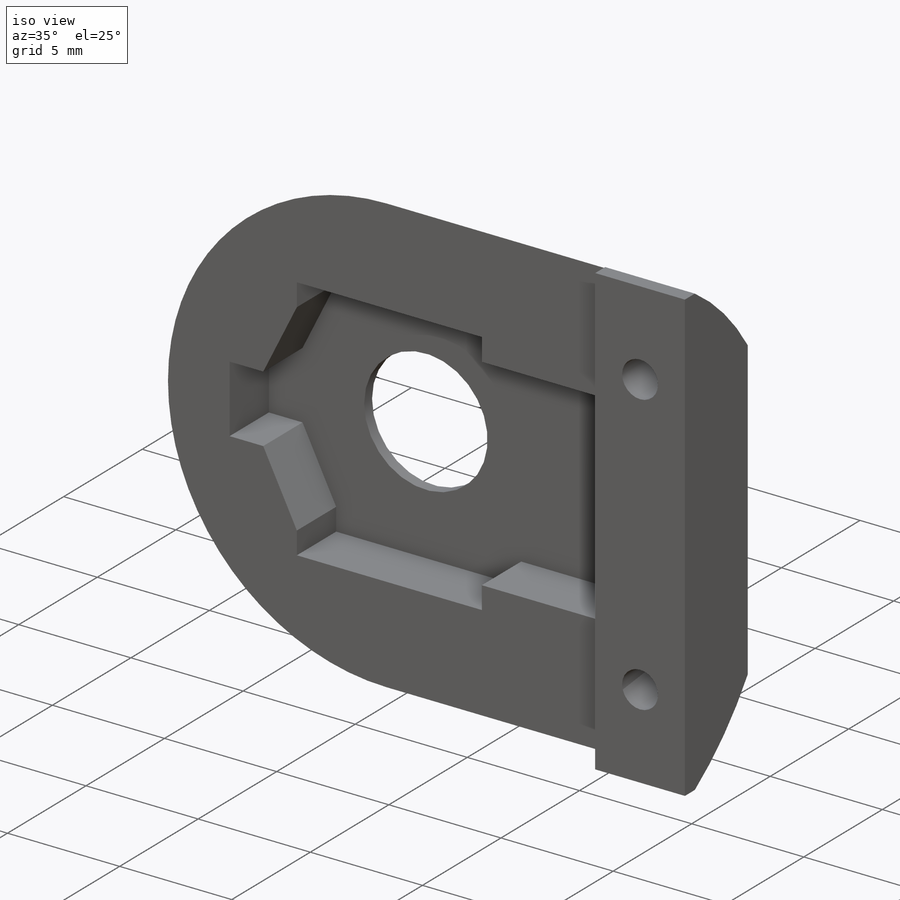
[diagram: iso view]
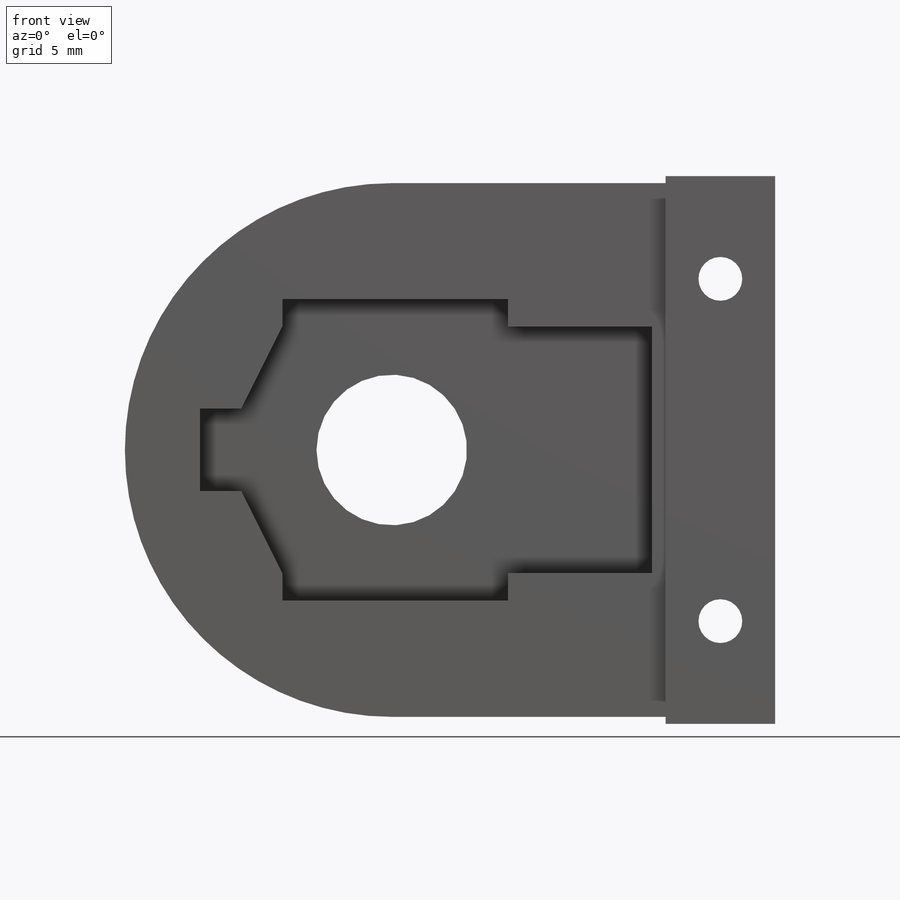
[diagram: front view]
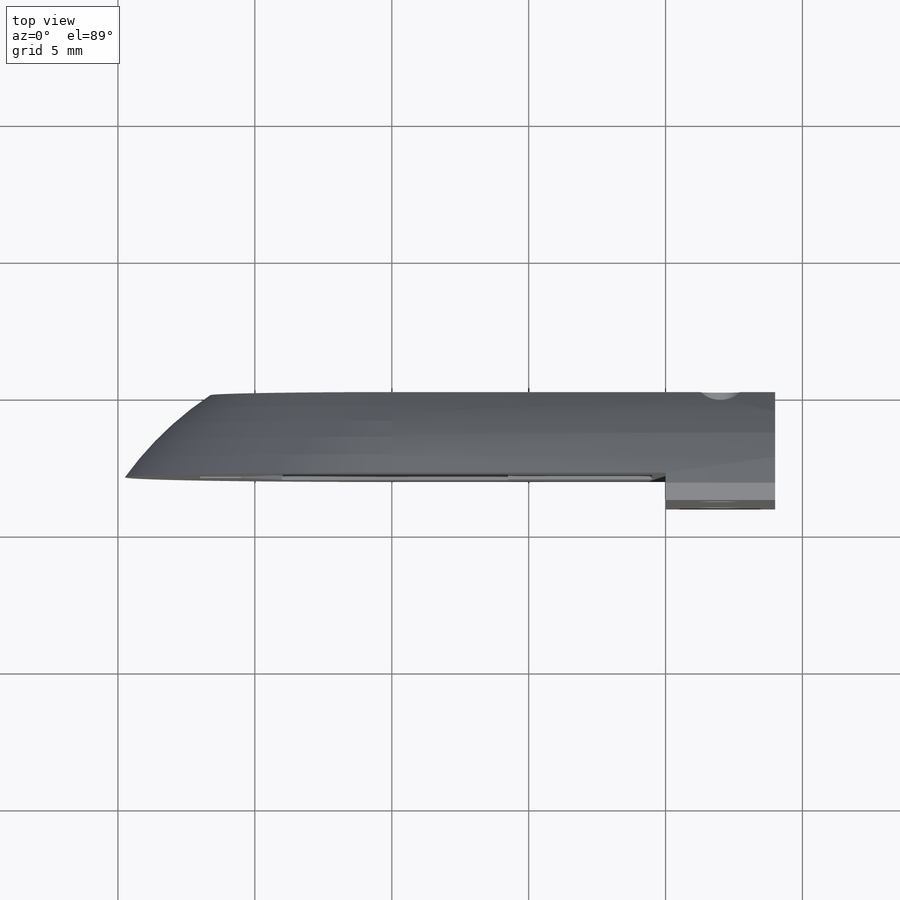
[diagram: top view]
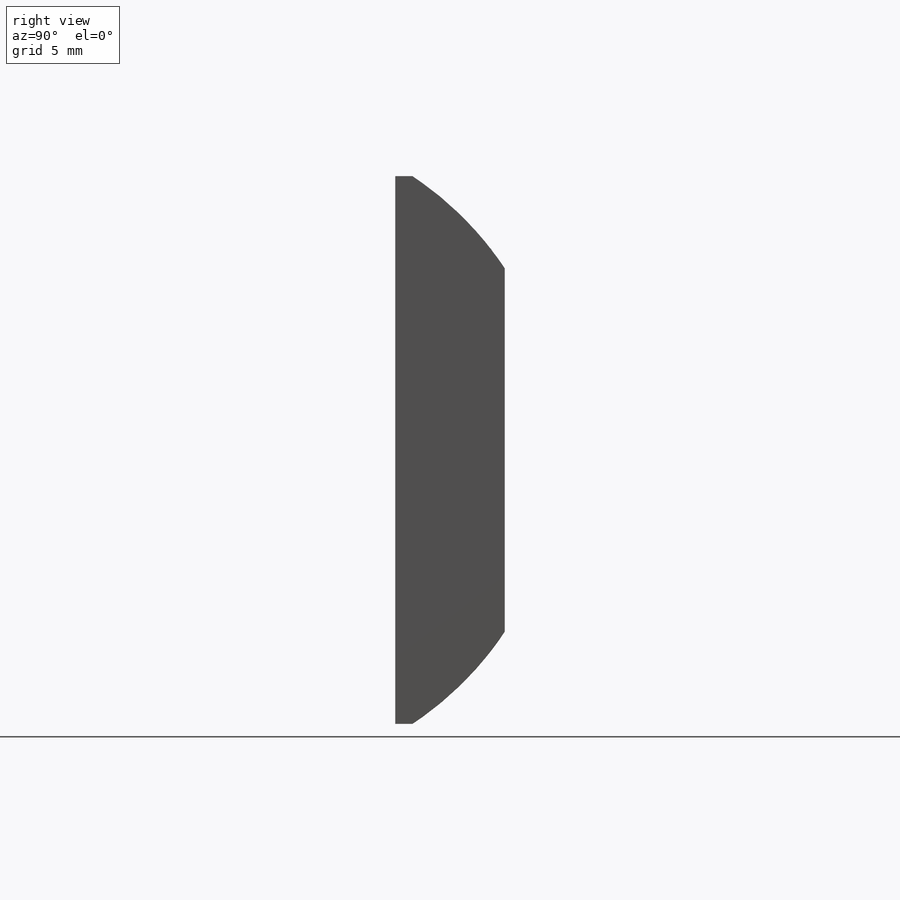
[diagram: right view]
SOLIDWORKS PART (.sldprt)
format: sldprt  version: not decoded by parser v0  size: 249,344 bytes
history: native  units: mm
features: sketch x8, cut_extrude x6, material x1, extrude x1, cut_revolve x1 (+16 scaffold rows collapsed; 3 parser-record rows omitted)
feature tree (36):
  scaffold x16  (default folders/planes/origin — collapsed)
  material  "Material <not specified>"
  sketch  "Sketch1"  dims[D1=14.0mm]
  extrude  "Boss-Extrude1"  Depth=4mm
  sketch  "Sketch2"  dims[D1=~29.775752mm]
  cut_extrude  "Body Hole"  Depth=2mm
  parser-record x3  (decoder bookkeeping rows leaked as tree rows — omitted from the tree; the rows remain in map.json)
  sketch  "Sketch5"  dims[D1=6.25mm]
  cut_extrude  "Screw Holes"  [1 undecoded]
  sketch  "Sketch6"  dims[D1=2.5mm]
  cut_extrude  "Screw Heads"  Depth=2mm
  sketch  "Sketch3"  dims[D1=10.0mm]
  cut_extrude  "Pot Insert"  Depth=2.5mm
  sketch  "Sketch4"  dims[D1=5.5mm]
  cut_extrude  "Pot Hole"  [1 undecoded]
  sketch  "Sketch11"  dims[D1=~6.154589mm]
  cut_revolve  "Cut-Revolve6"  Angle=180deg
  sketch  "Sketch13"  dims[D1=~16.645818mm]
  cut_extrude  "Cut-Extrude1"  [1 undecoded]
decode coverage: 13 of 16 modeling features carry decoded parameters
note: ~ marks probable driven/reference dimensions
note: 3 parameter values undecoded
summary: no parameter record found for 3 features
note: suppression state not decoded; provenance and decode notes live in map.json
